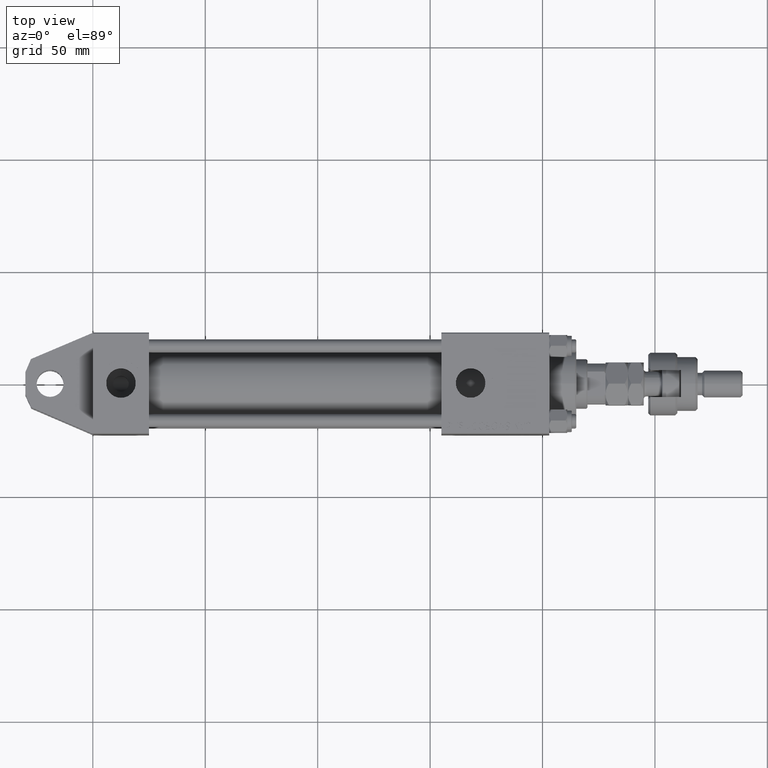
[diagram: clean part render]
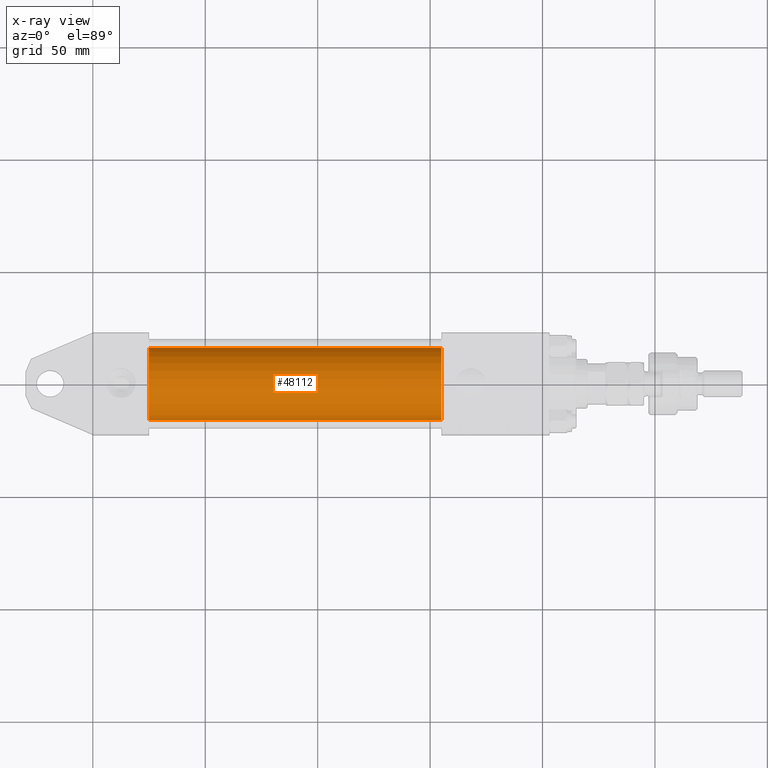
[diagram: x-ray — body ghosted, one internal face saturated and labeled with its STEP entity id]
A machine part, top view, then the same camera in x-ray: the body is ghosted and one INTERNAL B-rep face — a face not visible from any outside direction — is saturated and labeled: STEP entity #48112.
In plain terms, the highlighted cylindrical surface (edge-blend (fillet) strip) has radius 16 mm, axis along (-1, -0, 0).
Its self-contained STEP definition (entity closure, byte-faithful):
#541 = EDGE_CURVE ( 'NONE', #50297, #6340, #13995, .T. ) ;
#1831 = DIRECTION ( 'NONE',  ( 1.000000000000000000, 0.000000000000000000, 0.000000000000000000 ) ) ;
#3766 = EDGE_LOOP ( 'NONE', ( #7199, #11871, #8832, #24940 ) ) ;
#5471 = AXIS2_PLACEMENT_3D ( 'NONE', #50952, #1831, #14572 ) ;
#5797 = CIRCLE ( 'NONE', #15136, 16.00000000000000000 ) ;
#6340 = VERTEX_POINT ( 'NONE', #29120 ) ;
#6345 = VECTOR ( 'NONE', #30196, 1000.000000000000000 ) ;
#7199 = ORIENTED_EDGE ( 'NONE', *, *, #26036, .T. ) ;
#8632 = LINE ( 'NONE', #40260, #23957 ) ;
#8832 = ORIENTED_EDGE ( 'NONE', *, *, #48815, .F. ) ;
#11871 = ORIENTED_EDGE ( 'NONE', *, *, #39154, .T. ) ;
#13995 = LINE ( 'NONE', #17717, #6345 ) ;
#14572 = DIRECTION ( 'NONE',  ( 0.000000000000000000, 0.000000000000000000, -1.000000000000000000 ) ) ;
#15136 = AXIS2_PLACEMENT_3D ( 'NONE', #43642, #39914, #51607 ) ;
#17331 = AXIS2_PLACEMENT_3D ( 'NONE', #33924, #17434, #33128 ) ;
#17434 = DIRECTION ( 'NONE',  ( -1.000000000000000000, -0.000000000000000000, -0.000000000000000000 ) ) ;
#17717 = CARTESIAN_POINT ( 'NONE',  ( 155.0000000000000000, -3.469446951953614189E-15, 16.00000000000000000 ) ) ;
#19800 = DIRECTION ( 'NONE',  ( -1.000000000000000000, -0.000000000000000000, -0.000000000000000000 ) ) ;
#23957 = VECTOR ( 'NONE', #19800, 1000.000000000000000 ) ;
#24142 = CIRCLE ( 'NONE', #5471, 16.00000000000000000 ) ;
#24940 = ORIENTED_EDGE ( 'NONE', *, *, #541, .F. ) ;
#26036 = EDGE_CURVE ( 'NONE', #50297, #50008, #5797, .T. ) ;
#29120 = CARTESIAN_POINT ( 'NONE',  ( 25.00000000000000000, -3.469446951953614189E-15, 16.00000000000000000 ) ) ;
#30196 = DIRECTION ( 'NONE',  ( -1.000000000000000000, -0.000000000000000000, -0.000000000000000000 ) ) ;
#31238 = CARTESIAN_POINT ( 'NONE',  ( 155.0000000000000000, -1.510012073317849255E-15, -16.00000000000000000 ) ) ;
#33128 = DIRECTION ( 'NONE',  ( 0.000000000000000000, 0.000000000000000000, 1.000000000000000000 ) ) ;
#33924 = CARTESIAN_POINT ( 'NONE',  ( 155.0000000000000000, -3.469446951953614189E-15, 0.000000000000000000 ) ) ;
#38166 = FACE_OUTER_BOUND ( 'NONE', #3766, .T. ) ;
#39154 = EDGE_CURVE ( 'NONE', #50008, #50943, #8632, .T. ) ;
#39914 = DIRECTION ( 'NONE',  ( 1.000000000000000000, 0.000000000000000000, 0.000000000000000000 ) ) ;
#39929 = CARTESIAN_POINT ( 'NONE',  ( 155.0000000000000000, -3.469446951953614189E-15, 16.00000000000000000 ) ) ;
#40260 = CARTESIAN_POINT ( 'NONE',  ( 155.0000000000000000, -1.510012073317849255E-15, -16.00000000000000000 ) ) ;
#43642 = CARTESIAN_POINT ( 'NONE',  ( 155.0000000000000000, -3.469446951953614189E-15, 0.000000000000000000 ) ) ;
#48112 = ADVANCED_FACE ( 'NONE', ( #38166 ), #49842, .F. ) ;
#48620 = CARTESIAN_POINT ( 'NONE',  ( 25.00000000000000000, -1.510012073317849255E-15, -16.00000000000000000 ) ) ;
#48815 = EDGE_CURVE ( 'NONE', #6340, #50943, #24142, .T. ) ;
#49842 = CYLINDRICAL_SURFACE ( 'NONE', #17331, 16.00000000000000000 ) ;
#50008 = VERTEX_POINT ( 'NONE', #31238 ) ;
#50297 = VERTEX_POINT ( 'NONE', #39929 ) ;
#50943 = VERTEX_POINT ( 'NONE', #48620 ) ;
#50952 = CARTESIAN_POINT ( 'NONE',  ( 25.00000000000000000, -3.469446951953614189E-15, 0.000000000000000000 ) ) ;
#51607 = DIRECTION ( 'NONE',  ( 0.000000000000000000, 0.000000000000000000, -1.000000000000000000 ) ) ;